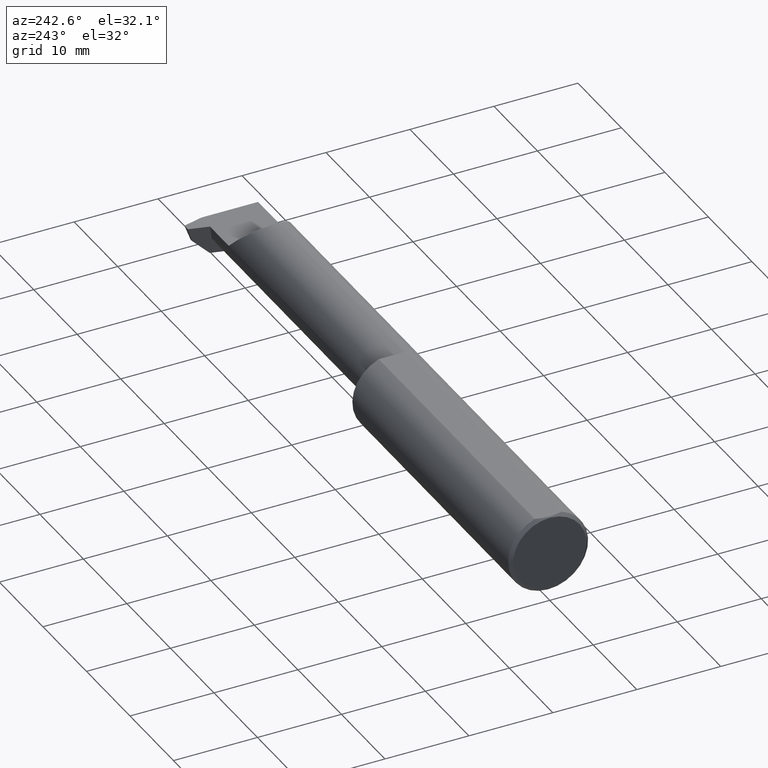
[diagram: clean part render]
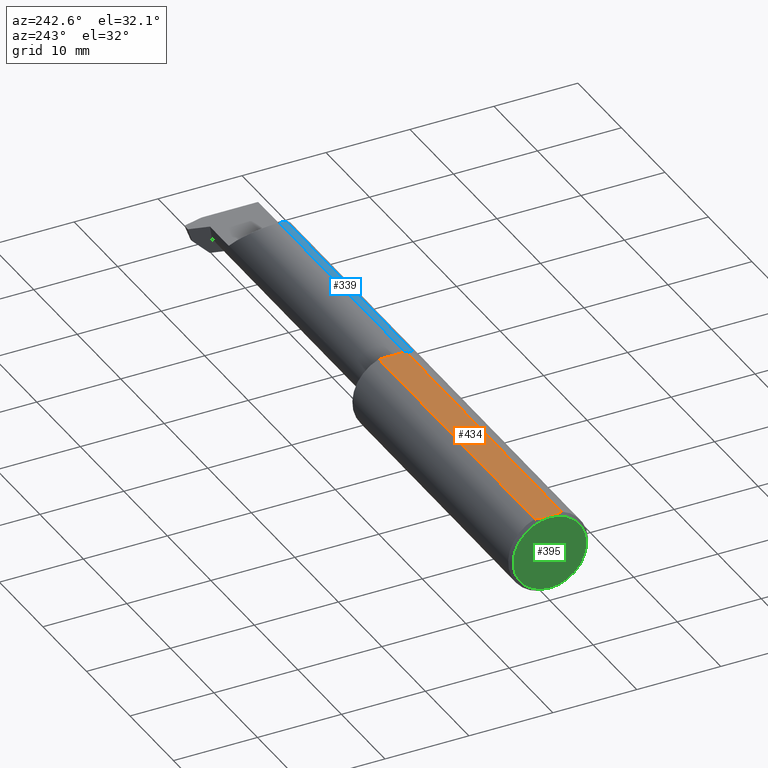
[diagram: same view with three faces highlighted in distinct colors, each labeled with its STEP entity id]
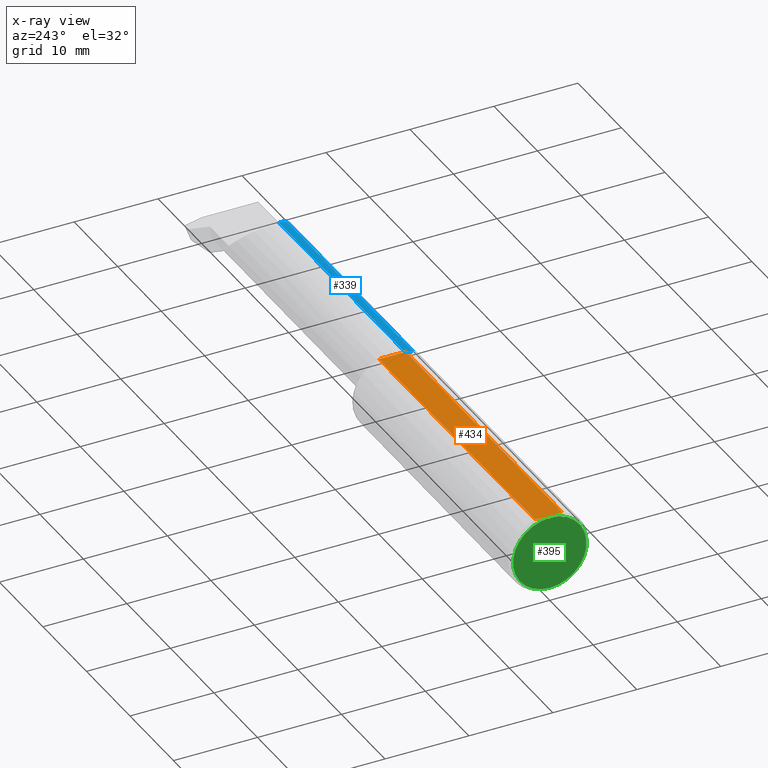
[diagram: x-ray of the same camera — body ghosted, the three highlighted faces saturated]
A machine part, auxiliary view with three faces highlighted in distinct colors.
The next image is the same camera in x-ray (body ghosted, the three faces saturated) — at least one of them is partly hidden behind the body in this view.
Their STEP definitions:

[orange] entity #434 — the highlighted planar face has unit normal (-0, 0, -1).
#37 = VECTOR ( 'NONE', #549, 39.37007874015748143 ) ;
#63 = ORIENTED_EDGE ( 'NONE', *, *, #697, .F. ) ;
#82 = EDGE_CURVE ( 'NONE', #737, #663, #784, .T. ) ;
#83 = VERTEX_POINT ( 'NONE', #488 ) ;
#88 = CARTESIAN_POINT ( 'NONE',  ( 0.008096539338611864062, -0.04280300585742020242, 0.1763499999999999790 ) ) ;
#103 = CARTESIAN_POINT ( 'NONE',  ( 3.000000000000000444, 0.06325108694718233060, 0.1763499999999999235 ) ) ;
#104 = CARTESIAN_POINT ( 'NONE',  ( 0.004000000000004001223, 2.159664630174422375E-17, 0.1763499999999999790 ) ) ;
#121 = AXIS2_PLACEMENT_3D ( 'NONE', #962, #969, #904 ) ;
#180 = CARTESIAN_POINT ( 'NONE',  ( 0.008079618022133900831, 0.04275288484297749131, 0.1763499999999999790 ) ) ;
#194 = CARTESIAN_POINT ( 'NONE',  ( 1.425138881465989549, -0.05526243373525235175, 0.1763499999999999790 ) ) ;
#206 = B_SPLINE_CURVE_WITH_KNOTS ( 'NONE', 3,
 ( #949, #194, #582, #497 ),
 .UNSPECIFIED., .F., .F.,
 ( 4, 4 ),
 ( 4.553649124439118623E-18, 0.0006087596641710207564 ),
 .UNSPECIFIED. ) ;
#242 = VERTEX_POINT ( 'NONE', #924 ) ;
#291 = ORIENTED_EDGE ( 'NONE', *, *, #739, .T. ) ;
#305 = B_SPLINE_CURVE_WITH_KNOTS ( 'NONE', 3,
 ( #715, #469, #88, #538 ),
 .UNSPECIFIED., .F., .F.,
 ( 4, 4 ),
 ( 0.005496776235116828009, 0.007121625476792210231 ),
 .UNSPECIFIED. ) ;
#337 = LINE ( 'NONE', #103, #577 ) ;
#342 = DIRECTION ( 'NONE',  ( -1.000000000000000000, -0.000000000000000000, -0.000000000000000000 ) ) ;
#404 = CARTESIAN_POINT ( 'NONE',  ( 1.425000000000000266, 0.1000000000000000056, 0.1763499999999999790 ) ) ;
#405 = CARTESIAN_POINT ( 'NONE',  ( 0.004000000000004001223, 0.02174349820064849087, 0.1763499999999999790 ) ) ;
#419 = CARTESIAN_POINT ( 'NONE',  ( 0.01500000000000407431, 0.06325108694718213631, 0.1763499999999999790 ) ) ;
#434 = ADVANCED_FACE ( 'NONE', ( #512 ), #738, .F. ) ;
#454 = ORIENTED_EDGE ( 'NONE', *, *, #612, .F. ) ;
#469 = CARTESIAN_POINT ( 'NONE',  ( 0.004000000000003996886, -0.02175731046388917206, 0.1763499999999999790 ) ) ;
#475 = DIRECTION ( 'NONE',  ( 1.000000000000000000, 0.000000000000000000, 0.000000000000000000 ) ) ;
#488 = CARTESIAN_POINT ( 'NONE',  ( 0.01500000000000344114, -0.06325108694718359348, 0.1763499999999999790 ) ) ;
#497 = CARTESIAN_POINT ( 'NONE',  ( 1.425000000000000266, -0.03928509323455842139, 0.1763499999999999790 ) ) ;
#512 = FACE_OUTER_BOUND ( 'NONE', #620, .T. ) ;
#538 = CARTESIAN_POINT ( 'NONE',  ( 0.01500000000000344114, -0.06325108694718359348, 0.1763499999999999790 ) ) ;
#549 = DIRECTION ( 'NONE',  ( 0.000000000000000000, -1.000000000000000000, 0.000000000000000000 ) ) ;
#553 = CARTESIAN_POINT ( 'NONE',  ( 3.000000000000000444, -0.06325108694718233060, 0.1763499999999999235 ) ) ;
#558 = CARTESIAN_POINT ( 'NONE',  ( 0.004000000000004001223, 2.159664630174422375E-17, 0.1763499999999999790 ) ) ;
#569 = CARTESIAN_POINT ( 'NONE',  ( 1.425000000000000266, -0.03928509323455842139, 0.1763499999999999790 ) ) ;
#577 = VECTOR ( 'NONE', #475, 39.37007874015748143 ) ;
#582 = CARTESIAN_POINT ( 'NONE',  ( 1.425000000000000266, -0.04727406520530673395, 0.1763499999999999790 ) ) ;
#595 = EDGE_CURVE ( 'NONE', #242, #762, #925, .T. ) ;
#607 = VERTEX_POINT ( 'NONE', #932 ) ;
#612 = EDGE_CURVE ( 'NONE', #737, #242, #337, .T. ) ;
#620 = EDGE_LOOP ( 'NONE', ( #898, #454, #718, #713, #63, #291 ) ) ;
#663 = VERTEX_POINT ( 'NONE', #558 ) ;
#684 = EDGE_CURVE ( 'NONE', #663, #83, #305, .T. ) ;
#697 = EDGE_CURVE ( 'NONE', #607, #83, #935, .T. ) ;
#713 = ORIENTED_EDGE ( 'NONE', *, *, #684, .T. ) ;
#715 = CARTESIAN_POINT ( 'NONE',  ( 0.004000000000004001223, 2.159664630174422375E-17, 0.1763499999999999790 ) ) ;
#718 = ORIENTED_EDGE ( 'NONE', *, *, #82, .T. ) ;
#737 = VERTEX_POINT ( 'NONE', #419 ) ;
#738 = PLANE ( 'NONE',  #121 ) ;
#739 = EDGE_CURVE ( 'NONE', #607, #762, #206, .T. ) ;
#762 = VERTEX_POINT ( 'NONE', #569 ) ;
#784 = B_SPLINE_CURVE_WITH_KNOTS ( 'NONE', 3,
 ( #794, #180, #405, #104 ),
 .UNSPECIFIED., .F., .F.,
 ( 4, 4 ),
 ( 0.003872958501701152106, 0.005496776235116828009 ),
 .UNSPECIFIED. ) ;
#794 = CARTESIAN_POINT ( 'NONE',  ( 0.01500000000000407431, 0.06325108694718213631, 0.1763499999999999790 ) ) ;
#837 = VECTOR ( 'NONE', #342, 39.37007874015748143 ) ;
#898 = ORIENTED_EDGE ( 'NONE', *, *, #595, .F. ) ;
#904 = DIRECTION ( 'NONE',  ( -1.000000000000000000, 0.000000000000000000, 0.000000000000000000 ) ) ;
#924 = CARTESIAN_POINT ( 'NONE',  ( 1.425000000000000266, 0.06325108694718213631, 0.1763499999999999790 ) ) ;
#925 = LINE ( 'NONE', #404, #37 ) ;
#932 = CARTESIAN_POINT ( 'NONE',  ( 1.425210246786177581, -0.06325108694718233060, 0.1763499999999999235 ) ) ;
#935 = LINE ( 'NONE', #553, #837 ) ;
#949 = CARTESIAN_POINT ( 'NONE',  ( 1.425210246786177581, -0.06325108694718233060, 0.1763499999999999235 ) ) ;
#962 = CARTESIAN_POINT ( 'NONE',  ( 0.000000000000000000, 0.1000000000000000056, 0.1763499999999999790 ) ) ;
#969 = DIRECTION ( 'NONE',  ( -0.000000000000000000, 0.000000000000000000, -1.000000000000000000 ) ) ;

[blue] entity #339 — the highlighted cylindrical surface (partial cylindrical patch) has radius 3.937 mm, axis along (-1, -0, -0).
#19 = FACE_OUTER_BOUND ( 'NONE', #772, .T. ) ;
#71 = VERTEX_POINT ( 'NONE', #788 ) ;
#80 = CARTESIAN_POINT ( 'NONE',  ( 1.450000000000000178, -0.1111655275381552704, 0.1508053314281814217 ) ) ;
#91 = EDGE_CURVE ( 'NONE', #71, #117, #102, .T. ) ;
#102 = CIRCLE ( 'NONE', #184, 0.1549999999999999989 ) ;
#114 = LINE ( 'NONE', #563, #623 ) ;
#117 = VERTEX_POINT ( 'NONE', #80 ) ;
#158 = ORIENTED_EDGE ( 'NONE', *, *, #734, .T. ) ;
#174 =( BOUNDED_CURVE ( )  B_SPLINE_CURVE ( 3, ( #608, #310, #916, #534 ),
 .UNSPECIFIED., .F., .T. ) 
 B_SPLINE_CURVE_WITH_KNOTS ( ( 4, 4 ),
 ( 0.000000000000000000, 0.2331751639699407574 ),
 .UNSPECIFIED. ) 
 CURVE ( )  GEOMETRIC_REPRESENTATION_ITEM ( )  RATIONAL_B_SPLINE_CURVE ( ( 1.000000000000000000, 0.9954742418208946120, 0.9954742418208946120, 1.000000000000000000 ) ) 
 REPRESENTATION_ITEM ( '' )  );
#176 = DIRECTION ( 'NONE',  ( 0.000000000000000000, 0.000000000000000000, -1.000000000000000000 ) ) ;
#182 = DIRECTION ( 'NONE',  ( 0.000000000000000000, 0.000000000000000000, 1.000000000000000000 ) ) ;
#184 = AXIS2_PLACEMENT_3D ( 'NONE', #414, #338, #176 ) ;
#188 = DIRECTION ( 'NONE',  ( -1.000000000000000000, -0.000000000000000000, -0.000000000000000000 ) ) ;
#189 = CARTESIAN_POINT ( 'NONE',  ( 1.425000000000000266, -0.07535000000000005582, 0.000000000000000000 ) ) ;
#228 = EDGE_CURVE ( 'NONE', #340, #314, #174, .T. ) ;
#275 = DIRECTION ( 'NONE',  ( 1.000000000000000000, 0.000000000000000000, 0.000000000000000000 ) ) ;
#310 = CARTESIAN_POINT ( 'NONE',  ( 2.595350000000000712, -0.08742475677085169428, 0.1549999999999999989 ) ) ;
#314 = VERTEX_POINT ( 'NONE', #939 ) ;
#338 = DIRECTION ( 'NONE',  ( 1.000000000000000000, 0.000000000000000000, 0.000000000000000000 ) ) ;
#339 = ADVANCED_FACE ( 'NONE', ( #19 ), #929, .T. ) ;
#340 = VERTEX_POINT ( 'NONE', #484 ) ;
#414 = CARTESIAN_POINT ( 'NONE',  ( 1.450000000000000178, -0.07535000000000005582, 0.000000000000000000 ) ) ;
#418 = VECTOR ( 'NONE', #188, 39.37007874015748143 ) ;
#484 = CARTESIAN_POINT ( 'NONE',  ( 2.595350000000000712, -0.07535000000000005582, 0.1549999999999999989 ) ) ;
#534 = CARTESIAN_POINT ( 'NONE',  ( 2.599544668571819095, -0.1111655275381558949, 0.1508053314281809498 ) ) ;
#546 = AXIS2_PLACEMENT_3D ( 'NONE', #189, #556, #182 ) ;
#556 = DIRECTION ( 'NONE',  ( -1.000000000000000000, -0.000000000000000000, -0.000000000000000000 ) ) ;
#563 = CARTESIAN_POINT ( 'NONE',  ( 2.172500000000000320, -0.1111655275381552704, 0.1508053314281814217 ) ) ;
#608 = CARTESIAN_POINT ( 'NONE',  ( 2.595350000000000712, -0.07535000000000005582, 0.1549999999999999989 ) ) ;
#623 = VECTOR ( 'NONE', #275, 39.37007874015748143 ) ;
#725 = CARTESIAN_POINT ( 'NONE',  ( 1.425000000000000266, -0.07535000000000005582, 0.1549999999999999989 ) ) ;
#731 = ORIENTED_EDGE ( 'NONE', *, *, #228, .F. ) ;
#734 = EDGE_CURVE ( 'NONE', #117, #314, #114, .T. ) ;
#772 = EDGE_LOOP ( 'NONE', ( #731, #795, #973, #158 ) ) ;
#788 = CARTESIAN_POINT ( 'NONE',  ( 1.450000000000000178, -0.07535000000000005582, 0.1549999999999999989 ) ) ;
#795 = ORIENTED_EDGE ( 'NONE', *, *, #861, .T. ) ;
#796 = LINE ( 'NONE', #725, #418 ) ;
#861 = EDGE_CURVE ( 'NONE', #340, #71, #796, .T. ) ;
#916 = CARTESIAN_POINT ( 'NONE',  ( 2.596754579645090821, -0.09941754239787878311, 0.1535954203549100838 ) ) ;
#929 = CYLINDRICAL_SURFACE ( 'NONE', #546, 0.1549999999999999989 ) ;
#939 = CARTESIAN_POINT ( 'NONE',  ( 2.599544668571819095, -0.1111655275381558949, 0.1508053314281809498 ) ) ;
#973 = ORIENTED_EDGE ( 'NONE', *, *, #91, .T. ) ;

[green] entity #395 — the highlighted planar face has unit normal (1, 0, 0).
#21 = EDGE_CURVE ( 'NONE', #40, #222, #655, .T. ) ;
#26 = EDGE_CURVE ( 'NONE', #222, #40, #729, .T. ) ;
#40 = VERTEX_POINT ( 'NONE', #941 ) ;
#86 = DIRECTION ( 'NONE',  ( -1.000000000000000000, -0.000000000000000000, -0.000000000000000000 ) ) ;
#200 = AXIS2_PLACEMENT_3D ( 'NONE', #246, #539, #850 ) ;
#205 = FACE_OUTER_BOUND ( 'NONE', #281, .T. ) ;
#208 = ORIENTED_EDGE ( 'NONE', *, *, #21, .T. ) ;
#222 = VERTEX_POINT ( 'NONE', #319 ) ;
#234 = AXIS2_PLACEMENT_3D ( 'NONE', #933, #86, #390 ) ;
#246 = CARTESIAN_POINT ( 'NONE',  ( 0.000000000000000000, 0.000000000000000000, 0.000000000000000000 ) ) ;
#281 = EDGE_LOOP ( 'NONE', ( #415, #208 ) ) ;
#319 = CARTESIAN_POINT ( 'NONE',  ( 0.000000000000000000, 0.000000000000000000, -0.1723499999999960064 ) ) ;
#354 = DIRECTION ( 'NONE',  ( 0.000000000000000000, 0.000000000000000000, -1.000000000000000000 ) ) ;
#367 = CARTESIAN_POINT ( 'NONE',  ( 0.000000000000000000, 0.000000000000000000, 0.000000000000000000 ) ) ;
#390 = DIRECTION ( 'NONE',  ( 0.000000000000000000, 0.000000000000000000, -1.000000000000000000 ) ) ;
#395 = ADVANCED_FACE ( 'NONE', ( #205 ), #647, .F. ) ;
#415 = ORIENTED_EDGE ( 'NONE', *, *, #26, .T. ) ;
#442 = DIRECTION ( 'NONE',  ( 1.000000000000000000, 0.000000000000000000, 0.000000000000000000 ) ) ;
#539 = DIRECTION ( 'NONE',  ( -1.000000000000000000, -0.000000000000000000, -0.000000000000000000 ) ) ;
#596 = AXIS2_PLACEMENT_3D ( 'NONE', #367, #442, #354 ) ;
#647 = PLANE ( 'NONE',  #596 ) ;
#655 = CIRCLE ( 'NONE', #234, 0.1723499999999960064 ) ;
#729 = CIRCLE ( 'NONE', #200, 0.1723499999999960064 ) ;
#850 = DIRECTION ( 'NONE',  ( 0.000000000000000000, 0.000000000000000000, -1.000000000000000000 ) ) ;
#933 = CARTESIAN_POINT ( 'NONE',  ( 0.000000000000000000, 0.000000000000000000, 0.000000000000000000 ) ) ;
#941 = CARTESIAN_POINT ( 'NONE',  ( 0.000000000000000000, 2.202527268266490391E-17, 0.1723499999999960064 ) ) ;